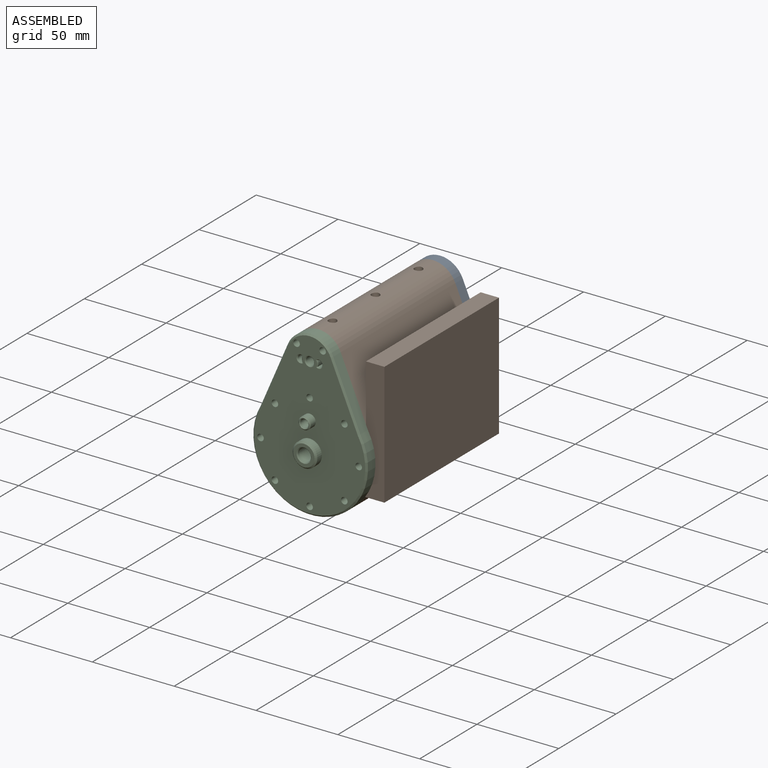
[diagram: assembled view]
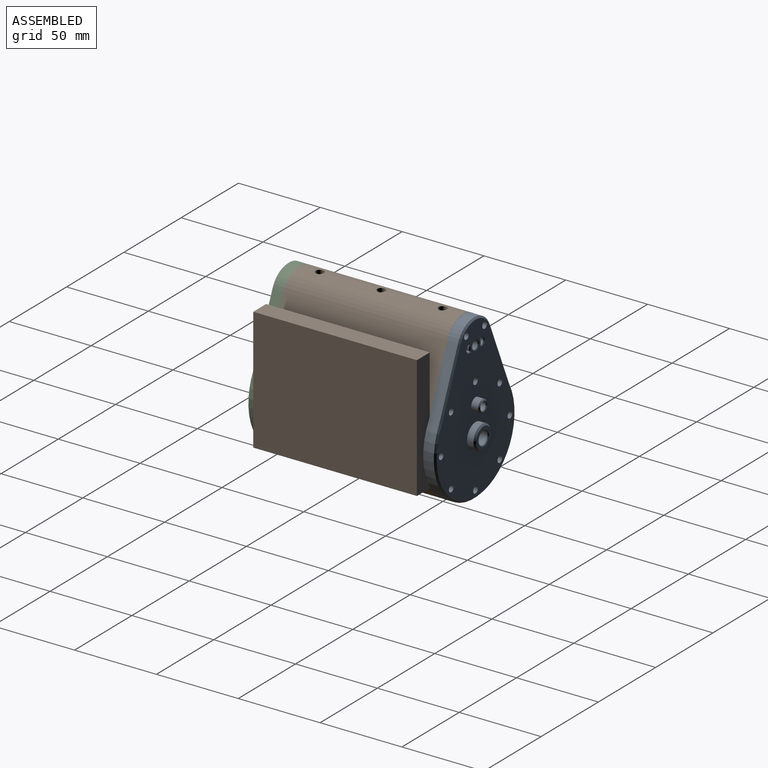
[diagram: assembled view, second angle]
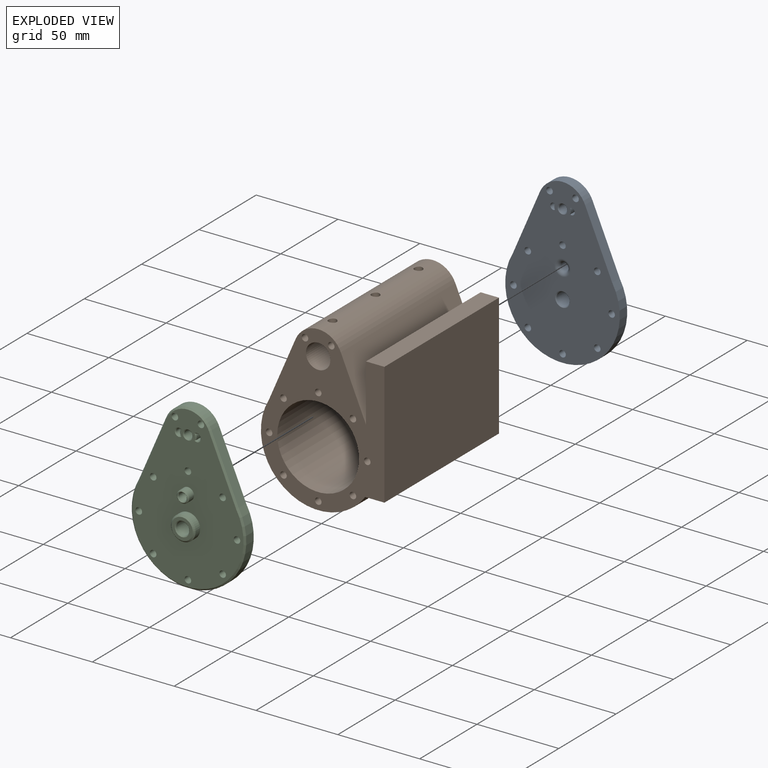
[diagram: exploded view]
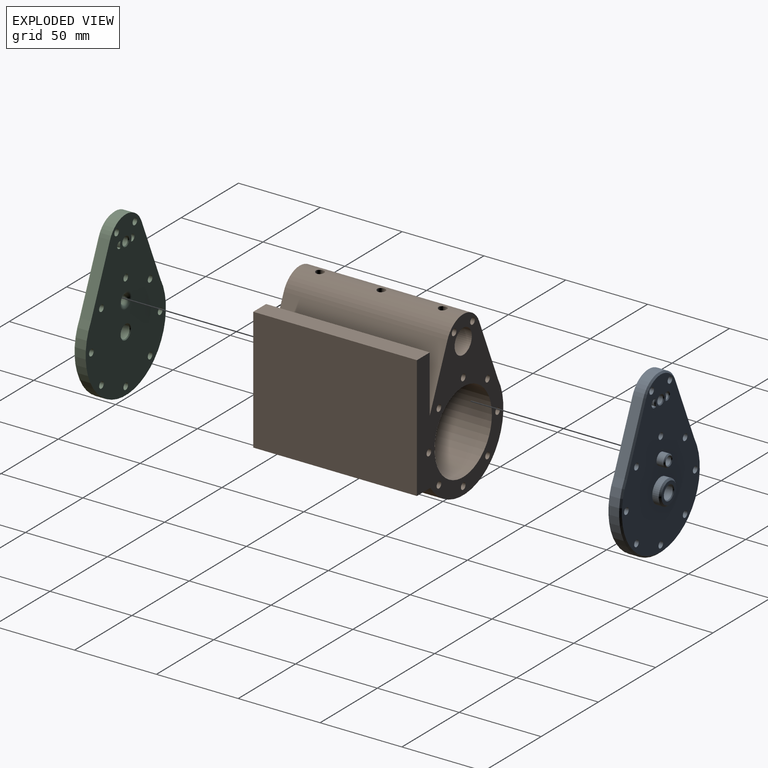
[diagram: exploded view, second angle]
ASSEMBLY  parts=3 mates=2
PART A: 42 faces, bbox 70x12.5x100 mm
  f0: cylinder r=35mm len=70mm, axis (0,1,0), area 952.6mm2, adj f1,f4,f7,f19
  f1: plane 38.45x16.54mm, normal (0.92,0,0.4), area 272.1mm2, adj f0,f2,f7,f18
  f2: cylinder r=15mm len=27.56mm, axis (0,1,0), area 227.1mm2, adj f1,f4,f7,f20
  f3: cylinder r=2mm len=7.5mm, axis (0,1,0), area 94.2mm2, adj f6,f7
  f4: plane 38.45x16.54mm, normal (-0.92,0,0.4), area 272.1mm2, adj f0,f2,f7,f21
  f5: cylinder r=2mm len=7.5mm, axis (0,1,0), area 94.2mm2, adj f6,f7
  f6: plane 98x68mm, normal (0,-1,0), area 4303mm2, adj f3,f5,f8,f9,f10,f11,f12,f13
  f7: plane 100x70mm, normal (0,1,0), area 4657.3mm2, adj f0,f1,f2,f3,f4,f5,f8,f9
  f8: cylinder r=2mm len=7.5mm, axis (0,-1,0), area 94.2mm2, adj f6,f7
  f9: cylinder r=2mm len=7.5mm, axis (0,-1,0), area 94.2mm2, adj f6,f7
  f10: cylinder r=2mm len=7.5mm, axis (0,-1,0), area 94.2mm2, adj f6,f7
  f11: cylinder r=2mm len=7.5mm, axis (0,-1,0), area 94.2mm2, adj f6,f7
  f12: cylinder r=2mm len=7.5mm, axis (0,-1,0), area 94.2mm2, adj f6,f7
  f13: cylinder r=2mm len=7.5mm, axis (0,-1,0), area 94.2mm2, adj f6,f7
  f14: cylinder r=2mm len=7.5mm, axis (0,-1,0), area 94.2mm2, adj f6,f7
  f15: cylinder r=2mm len=7.5mm, axis (0,-1,0), area 94.2mm2, adj f6,f7
  f16: cylinder r=7.5mm len=15mm, axis (0,1,0), area 188.5mm2, adj f6,f22
  f17: plane 13x13mm, normal (0,-1,0), area 69.1mm2, adj f22,f36
  f18: plane 38.9x17.46mm, normal (0.65,-0.71,0.28), area 59.2mm2, adj f1,f6,f19,f20
  f19: cone r=34mm half-angle=45deg, axis (0,1,0), area 204.4mm2, adj f0,f6,f18,f21
  f20: cone r=14mm half-angle=45deg, axis (0,1,0), area 47.8mm2, adj f2,f6,f18,f21
  f21: plane 38.9x17.46mm, normal (-0.65,-0.71,0.28), area 59.2mm2, adj f4,f6,f19,f20
  f22: cone r=6.5mm half-angle=45deg, axis (0,1,0), area 62.2mm2, adj f16,f17
  f23: cylinder r=4mm len=11.5mm, axis (0,-1,0), area 289mm2, adj f35,f36
  f24: cylinder r=2.5mm len=6.5mm, axis (0,-1,0), area 102.1mm2, adj f34,f37
  f25: cylinder r=3.75mm len=7.5mm, axis (0,1,0), area 100.1mm2, adj f6,f26
  f26: cone r=3mm half-angle=45deg, axis (0,1,0), area 22.5mm2, adj f25,f33
  f27: cylinder r=2.5mm len=9.5mm, axis (0,-1,0), area 149.2mm2, adj f28,f33
  f28: torus R=5mm, axis (0,-1,0), area 84.1mm2, adj f7,f27
  f29: cylinder r=2mm len=7mm, axis (0,-1,0), area 56.1mm2, adj f7,f30,f39
  f30: cylinder r=5mm len=7mm, axis (0,-1,0), area 26mm2, adj f7,f29,f38
  f31: cylinder r=2mm len=7mm, axis (0,-1,0), area 56.1mm2, adj f7,f32,f41
  f32: cylinder r=5mm len=7mm, axis (0,-1,0), area 26mm2, adj f7,f31,f40
  f33: cone r=2.5mm half-angle=45deg, axis (0,-1,0), area 12.2mm2, adj f26,f27
  f34: cone r=3mm half-angle=45deg, axis (0,1,0), area 12.2mm2, adj f7,f24
  f35: cone r=4.5mm half-angle=45deg, axis (0,1,0), area 18.9mm2, adj f7,f23
  f36: cone r=4mm half-angle=45deg, axis (0,-1,0), area 18.9mm2, adj f17,f23
  f37: cone r=2.5mm half-angle=45deg, axis (0,-1,0), area 12.2mm2, adj f6,f24
  f38: cone r=4.5mm half-angle=45deg, axis (0,1,0), area 2.8mm2, adj f6,f30,f39
  f39: cone r=2mm half-angle=45deg, axis (0,-1,0), area 6.7mm2, adj f6,f29,f38
  f40: cone r=4.5mm half-angle=45deg, axis (0,1,0), area 2.8mm2, adj f6,f32,f41
  f41: cone r=2mm half-angle=45deg, axis (0,-1,0), area 6.7mm2, adj f6,f31,f40
PART B: 25 faces, bbox 75.4x100x100 mm
  f0: cylinder r=15mm len=100mm, axis (0,0,-1), area 3434.3mm2, adj f2,f6,f8,f9,f20,f21,f22
  f1: cylinder r=7.5mm len=100mm, axis (0,0,-1), area 4652.9mm2, adj f8,f9,f20,f21,f22
  f2: plane 100x38.45mm, normal (-0.92,0.4,0), area 4185.7mm2, adj f0,f3,f8,f9
  f3: cylinder r=35mm len=100mm, axis (0,0,-1), area 10696.9mm2, adj f2,f4,f8,f9
  f4: plane 100x11.72mm, normal (0,-1,0), area 1172.2mm2, adj f3,f5,f8,f9
  f5: plane 100x75mm, normal (1,0,0), area 7500mm2, adj f4,f8,f9,f19
  f6: plane 100x35.93mm, normal (0.92,0.4,0), area 3911.4mm2, adj f0,f8,f9,f18
  f7: cylinder r=25mm len=100mm, axis (0,0,-1), area 15708mm2, adj f8,f9
  f8: plane 100x75.45mm, normal (0,0,1), area 3394.9mm2, adj f0,f1,f2,f3,f4,f5,f6,f7
  f9: plane 100x75.45mm, normal (0,0,-1), area 3394.9mm2, adj f0,f1,f2,f3,f4,f5,f6,f7
  f10: cylinder r=2mm len=100mm, axis (0,0,-1), area 1256.6mm2, adj f8,f9
  f11: cylinder r=2mm len=100mm, axis (0,0,-1), area 1256.6mm2, adj f8,f9
  f12: cylinder r=2mm len=100mm, axis (0,0,-1), area 1256.6mm2, adj f8,f9
  f13: cylinder r=2mm len=100mm, axis (0,0,-1), area 1256.6mm2, adj f8,f9
  f14: cylinder r=2mm len=100mm, axis (0,0,-1), area 1256.6mm2, adj f8,f9
  f15: cylinder r=2mm len=100mm, axis (0,0,-1), area 1256.6mm2, adj f8,f9
  f16: cylinder r=2mm len=100mm, axis (0,0,-1), area 1256.6mm2, adj f8,f9
  f17: cylinder r=2mm len=100mm, axis (0,0,-1), area 1256.6mm2, adj f8,f9
  f18: plane 100x35mm, normal (-1,0,0), area 3500mm2, adj f6,f8,f9,f19
  f19: plane 100x11.21mm, normal (0,1,0), area 1120.7mm2, adj f5,f8,f9,f18
  f20: cylinder r=2.5mm len=7.93mm, axis (0,-1,0), area 119.5mm2, adj f0,f1
  f21: cylinder r=2.5mm len=7.93mm, axis (0,-1,0), area 119.5mm2, adj f0,f1
  f22: cylinder r=2.5mm len=7.93mm, axis (0,-1,0), area 119.5mm2, adj f0,f1
  f23: cylinder r=2mm len=100mm, axis (0,0,-1), area 1256.6mm2, adj f8,f9
  f24: cylinder r=2mm len=100mm, axis (0,0,-1), area 1256.6mm2, adj f8,f9
PART C: same geometry as A
PLACE A rot(axis=(0,0,1),180deg) t=(-7.21,7.4,-25.57)mm
PLACE B rot(axis=(1,0,0),90deg) t=(-7.21,7.4,-25.5)mm
PLACE C t=(-7.21,-92.6,-25.5)mm
MATE planar A.f15 <-> B.f13  axis (0,-1,0) through (-7.21,7.4,4.43)mm
MATE fastened C.f0 <-> B.f3  axis (0,1,0) through (-7.21,-92.6,-25.5)mm
